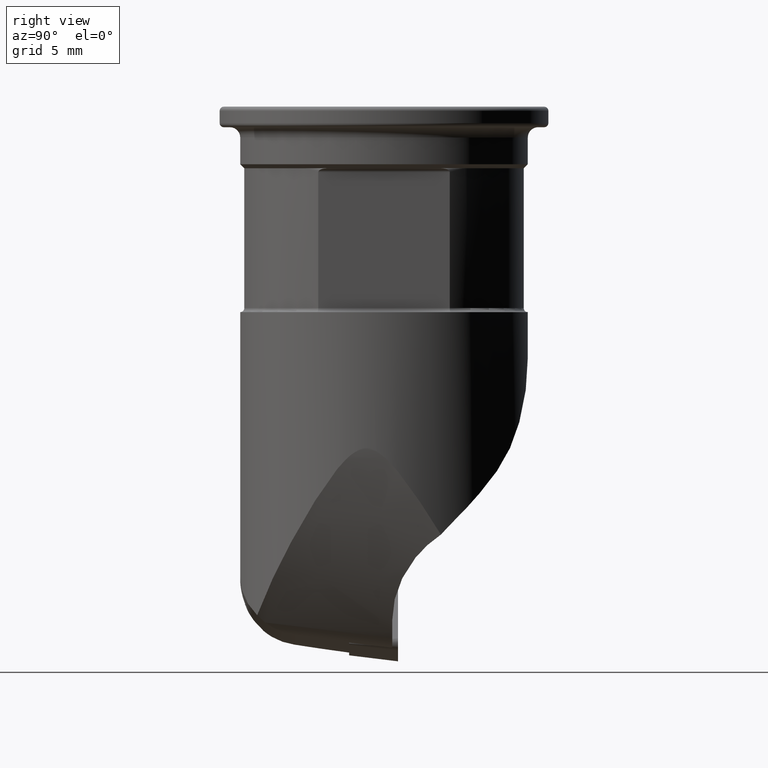
[diagram: clean part render]
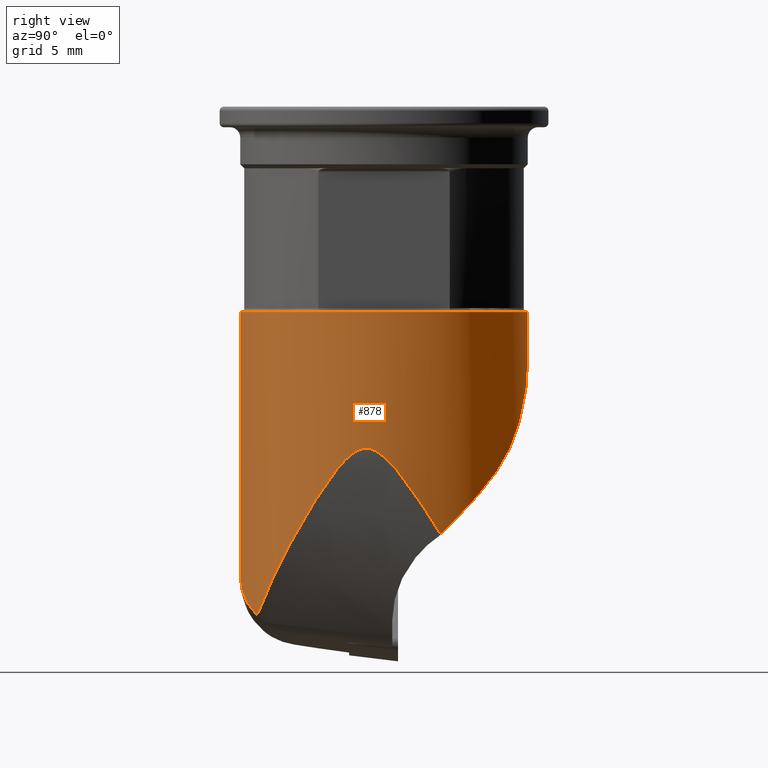
[diagram: same view with one face highlighted and labeled with its STEP entity id]
A machine part, right view. The second image highlights one B-rep face of the part: STEP entity #878.
In plain terms, the highlighted cylindrical surface (partial cylindrical patch) has radius 7 mm, axis along (0, 0, 1).
Its self-contained STEP definition (entity closure, byte-faithful):
#718=VERTEX_POINT('NONE',#2031);
#724=VERTEX_POINT('NONE',#2037);
#774=EDGE_CURVE('NONE',#1180,#1252,#2092,.T.);
#782=EDGE_CURVE('NONE',#1078,#1354,#2100,.T.);
#800=VERTEX_POINT('NONE',#2120);
#856=VERTEX_POINT('NONE',#2182);
#868=EDGE_CURVE('NONE',#1354,#1744,#2195,.T.);
#878=ADVANCED_FACE('NONE',(#2206),#2207,.T.);
#932=EDGE_CURVE('NONE',#1804,#724,#2265,.F.);
#948=VERTEX_POINT('NONE',#2282);
#958=VERTEX_POINT('NONE',#2292);
#970=EDGE_CURVE('NONE',#1300,#1518,#2306,.T.);
#1014=EDGE_CURVE('NONE',#958,#1078,#2355,.F.);
#1052=EDGE_CURVE('NONE',#948,#1300,#2400,.F.);
#1078=VERTEX_POINT('NONE',#2429);
#1104=EDGE_CURVE('NONE',#800,#1180,#2457,.F.);
#1150=EDGE_CURVE('NONE',#958,#1712,#2507,.T.);
#1180=VERTEX_POINT('NONE',#2542);
#1182=EDGE_CURVE('NONE',#1744,#1518,#2544,.F.);
#1218=EDGE_CURVE('NONE',#856,#948,#2583,.F.);
#1252=VERTEX_POINT('NONE',#2621);
#1294=EDGE_CURVE('NONE',#724,#1712,#2673,.T.);
#1300=VERTEX_POINT('NONE',#2681);
#1344=EDGE_CURVE('NONE',#856,#718,#2732,.F.);
#1354=VERTEX_POINT('NONE',#2743);
#1500=EDGE_CURVE('NONE',#1252,#1804,#2903,.F.);
#1518=VERTEX_POINT('NONE',#2922);
#1528=EDGE_CURVE('NONE',#800,#718,#2932,.T.);
#1712=VERTEX_POINT('NONE',#3140);
#1744=VERTEX_POINT('NONE',#3172);
#1804=VERTEX_POINT('NONE',#3237);
#2031=CARTESIAN_POINT('',(3.29838022265162,-6.17419532464115,-24.7547677929149));
#2037=CARTESIAN_POINT('',(6.2,3.24961536185438,-10.0));
#2092=LINE('',#3606,#3607);
#2100=ELLIPSE('',#3619,9.33333333333331,7.0);
#2120=CARTESIAN_POINT('',(-2.8421709430404E-014,-7.0,-22.8576985133863));
#2182=CARTESIAN_POINT('',(6.86464660039876,-1.36990038018603,-16.7884912981286));
#2195=B_SPLINE_CURVE_WITH_KNOTS('',3,(#3757,#3758,#3759,#3760,#3761,#3762,#3763,#3764,#3765,#3766,#3767,#3768,#3769,#3770,#3771,#3772,#3773,#3774),.UNSPECIFIED.,.F.,.F.,(4,2,2,2,2,2,2,2,4),(0.0,0.958743457869818,1.91748691573964,2.87623037360946,3.83497383147927,4.79371728934909,5.75246074721891,6.71120420508873,7.66994766295855),.UNSPECIFIED.);
#2206=FACE_OUTER_BOUND('',#3787,.T.);
#2207=CYLINDRICAL_SURFACE('',#3788,7.0);
#2265=CIRCLE('',#3873,7.0);
#2282=CARTESIAN_POINT('',(6.87349269490676,-1.32480118246602,-16.7636936487642));
#2292=CARTESIAN_POINT('',(-1.77635683940025E-015,7.0,-12.2321305522334));
#2306=B_SPLINE_CURVE_WITH_KNOTS('',3,(#3926,#3927,#3928,#3929,#3930,#3931,#3932,#3933),.UNSPECIFIED.,.F.,.F.,(4,2,2,4),(-0.0479824227621615,-0.0243252896451255,-0.0122296593758673,-0.0),.UNSPECIFIED.);
#2355=B_SPLINE_CURVE_WITH_KNOTS('',3,(#4083,#4084,#4085,#4086,#4087,#4088,#4089,#4090,#4091,#4092,#4093,#4094,#4095,#4096,#4097,#4098,#4099,#4100),.UNSPECIFIED.,.F.,.F.,(4,2,2,2,2,2,2,2,4),(16.7221896226218,17.3235818928206,17.9249741630195,19.1277587034173,20.330543243815,21.5333277842128,23.9388968650083,26.3444659458038,26.3521997246103),.UNSPECIFIED.);
#2400=B_SPLINE_CURVE_WITH_KNOTS('',3,(#4357,#4358,#4359,#4360,#4361,#4362),.UNSPECIFIED.,.F.,.F.,(4,2,4),(-0.000991462258140471,-0.000495731129070236,-0.0),.UNSPECIFIED.);
#2429=CARTESIAN_POINT('',(4.33012701892221,5.49999999999999,-17.7321305522334));
#2457=LINE('',#4491,#4492);
#2507=LINE('',#4572,#4573);
#2542=CARTESIAN_POINT('',(-2.02109816968193E-015,-7.0,-16.5035189826904));
#2544=B_SPLINE_CURVE_WITH_KNOTS('',3,(#4892,#4893,#4894,#4895,#4896,#4897,#4898,#4899,#4900,#4901,#4902,#4903,#4904,#4905,#4906,#4907,#4908,#4909,#4910,#4911,#4912,#4913,#4914,#4915,#4916,#4917,#4918,#4919,#4920,#4921,#4922,#4923,#4924,#4925,#4926,#4927,#4928,#4929,#4930,#4931,#4932,#4933),.UNSPECIFIED.,.F.,.F.,(4,2,2,2,2,2,2,2,2,2,2,2,2,2,2,2,2,2,2,2,4),(0.0,2.03990172280936,4.07980344561873,6.11970516842809,8.15960689123745,9.86495752894426,10.7176328477977,11.5703081666511,12.2614474492123,12.607017090493,12.9525867317736,13.2623377549498,13.572088778126,13.8818398013023,14.1915908244785,14.811092870831,15.4305949171834,16.6695990098883,17.9086031025932,19.9649502830436,22.021297463494),.UNSPECIFIED.);
#2583=B_SPLINE_CURVE_WITH_KNOTS('',3,(#4983,#4984,#4985,#4986,#4987,#4988,#4989),.UNSPECIFIED.,.F.,.F.,(4,3,4),(0.0,0.671083726841175,1.0),.UNSPECIFIED.);
#2621=CARTESIAN_POINT('',(-1.22464679914735E-015,-7.0,-10.0));
#2673=CIRCLE('',#5160,7.0);
#2681=CARTESIAN_POINT('',(6.98900246608667,-0.392230199034196,-16.7634895249247));
#2732=B_SPLINE_CURVE_WITH_KNOTS('',3,(#5261,#5262,#5263,#5264,#5265,#5266,#5267,#5268,#5269,#5270,#5271,#5272,#5273,#5274,#5275,#5276,#5277,#5278,#5279,#5280,#5281,#5282,#5283,#5284,#5285,#5286,#5287,#5288,#5289,#5290,#5291,#5292,#5293,#5294,#5295,#5296,#5297,#5298,#5299,#5300,#5301,#5302),.UNSPECIFIED.,.F.,.F.,(4,2,2,2,2,2,2,2,2,2,2,2,2,2,2,2,2,2,2,2,4),(0.0,2.03990172280936,4.07980344561873,6.11970516842809,8.15960689123745,9.86495752894426,10.7176328477977,11.5703081666511,12.2614474492123,12.607017090493,12.9525867317736,13.2623377549498,13.572088778126,13.8818398013023,14.1915908244785,14.811092870831,15.4305949171834,16.6695990098883,17.9086031025932,19.9649502830436,22.021297463494),.UNSPECIFIED.);
#2743=CARTESIAN_POINT('',(6.11882341631132,3.40000000000003,-20.1648348987645));
#2903=CIRCLE('',#5607,7.0);
#2922=CARTESIAN_POINT('',(6.99123751229997,-0.350140038569912,-16.7863895080608));
#2932=B_SPLINE_CURVE_WITH_KNOTS('',3,(#5648,#5649,#5650,#5651,#5652,#5653,#5654,#5655,#5656,#5657,#5658,#5659,#5660,#5661,#5662,#5663),.UNSPECIFIED.,.F.,.F.,(4,2,2,2,2,2,2,4),(0.0,0.00541909721256568,0.96786555649554,1.93031201577851,2.89275847506149,3.85520493434446,4.64707572290395,5.43894651146343),.UNSPECIFIED.);
#3140=CARTESIAN_POINT('',(-3.67394039744206E-016,7.0,-10.0));
#3172=CARTESIAN_POINT('',(6.42924304014983,2.76854364796456,-20.8289220561862));
#3237=CARTESIAN_POINT('',(6.2,-3.24961536185438,-10.0));
#3606=CARTESIAN_POINT('',(1.26060226389638E-016,-7.0,1.02935986504359));
#3607=VECTOR('',#7065,1000.0);
#3619=AXIS2_PLACEMENT_3D('',#7070,#7071,#7072);
#3757=CARTESIAN_POINT('',(3.76454034465691,5.90154522082568,-17.9013348987644));
#3758=CARTESIAN_POINT('',(4.00176154316858,5.75022404323753,-18.0528608612331));
#3759=CARTESIAN_POINT('',(4.23230607154905,5.5828692077239,-18.2087353863286));
#3760=CARTESIAN_POINT('',(4.67115215087124,5.22122407591709,-18.5325406119994));
#3761=CARTESIAN_POINT('',(4.87943251432246,5.02694522400784,-18.7005128075117));
#3762=CARTESIAN_POINT('',(5.26685804310208,4.61944207509654,-19.0523575250352));
#3763=CARTESIAN_POINT('',(5.44604612301721,4.40618074023025,-19.2363204601669));
#3764=CARTESIAN_POINT('',(5.77124693069701,3.97071227252183,-19.6234546351738));
#3765=CARTESIAN_POINT('',(5.91726110376572,3.74853561462404,-19.8266589394441));
#3766=CARTESIAN_POINT('',(6.17519670742555,3.30642463222067,-20.2539612794805));
#3767=CARTESIAN_POINT('',(6.28744837640338,3.08597194882937,-20.4786005341736));
#3768=CARTESIAN_POINT('',(6.48026761680289,2.65732225544266,-20.9497915502272));
#3769=CARTESIAN_POINT('',(6.56086700199605,2.44915395603455,-21.1963564102568));
#3770=CARTESIAN_POINT('',(6.69480729011763,2.05496627564181,-21.7091869529143));
#3771=CARTESIAN_POINT('',(6.74820917420692,1.86890689242424,-21.9755319022758));
#3772=CARTESIAN_POINT('',(6.83380547710232,1.52651326001949,-22.5238093113466));
#3773=CARTESIAN_POINT('',(6.86604215616369,1.37018628612768,-22.8057397159509));
#3774=CARTESIAN_POINT('',(6.89088133331995,1.23115979876805,-23.092422056186));
#3787=EDGE_LOOP('',(#7205,#7206,#7207,#7208,#7209,#7210,#7211,#7212,#7213,#7214,#7215,#7216,#7217,#7218,#7219));
#3788=AXIS2_PLACEMENT_3D('',#7220,#7221,#7222);
#3873=AXIS2_PLACEMENT_3D('',#7282,#7283,#7284);
#3926=CARTESIAN_POINT('',(6.98900242589995,-0.392230914958872,-16.7634891448427));
#3927=CARTESIAN_POINT('',(6.98939270468554,-0.38527669672869,-16.7671817669863));
#3928=CARTESIAN_POINT('',(6.98977156131338,-0.378340470626926,-16.7709099854738));
#3929=CARTESIAN_POINT('',(6.99032707919062,-0.36788567732762,-16.7765966266023));
#3930=CARTESIAN_POINT('',(6.99051207356688,-0.364353434667183,-16.7785295616328));
#3931=CARTESIAN_POINT('',(6.99087823081193,-0.357259451965193,-16.7824348294096));
#3932=CARTESIAN_POINT('',(6.99105933081868,-0.353697789873347,-16.784407372799));
#3933=CARTESIAN_POINT('',(6.99123751308667,-0.350140028824675,-16.7863895112359));
#4083=CARTESIAN_POINT('',(5.74456264653803,4.0,-19.0128569577265));
#4084=CARTESIAN_POINT('',(5.63577905240399,4.15622854285463,-18.9500507203698));
#4085=CARTESIAN_POINT('',(5.5269497650961,4.29913971788994,-18.8734749862925));
#4086=CARTESIAN_POINT('',(5.30840886426247,4.56624258481898,-18.70234621669));
#4087=CARTESIAN_POINT('',(5.19870317684939,4.69035102689884,-18.6076557121923));
#4088=CARTESIAN_POINT('',(4.86708408110972,5.0413412052431,-18.3029476880956));
#4089=CARTESIAN_POINT('',(4.64286542247981,5.24700246073342,-18.0728436105066));
#4090=CARTESIAN_POINT('',(4.1843929232017,5.61943716314196,-17.5742730925055));
#4091=CARTESIAN_POINT('',(3.95082594519782,5.7853048864477,-17.3061360100033));
#4092=CARTESIAN_POINT('',(3.47494777416338,6.08305155700497,-16.7414109473402));
#4093=CARTESIAN_POINT('',(3.23266328729142,6.21482173883428,-16.4447431253346));
#4094=CARTESIAN_POINT('',(2.4939689170634,6.56327689528534,-15.521632648527));
#4095=CARTESIAN_POINT('',(1.98978364175156,6.73087496240267,-14.8674045166704));
#4096=CARTESIAN_POINT('',(0.985802830915673,6.94925241798673,-13.5467480032609));
#4097=CARTESIAN_POINT('',(0.486076061475614,6.99965804226892,-12.8802055707493));
#4098=CARTESIAN_POINT('',(0.00340295103908618,6.99999934375019,-12.236667636105));
#4099=CARTESIAN_POINT('',(0.00154679594165721,7.0,-12.2341928631125));
#4100=CARTESIAN_POINT('',(-1.77635683940025E-015,7.0,-12.2321305522334));
#4357=CARTESIAN_POINT('',(6.98900242589955,-0.392230914959586,-16.7634891448454));
#4358=CARTESIAN_POINT('',(6.98078591304163,-0.538637600838101,-16.6857486196521));
#4359=CARTESIAN_POINT('',(6.96717921957207,-0.696963513157642,-16.6228160064584));
#4360=CARTESIAN_POINT('',(6.92649703102738,-1.02517476338372,-16.6233649212961));
#4361=CARTESIAN_POINT('',(6.90122762118463,-1.18090946271327,-16.6861334044064));
#4362=CARTESIAN_POINT('',(6.87348250322846,-1.32485405910901,-16.76358943765));
#4491=CARTESIAN_POINT('',(1.26060226389638E-016,-6.99999999999998,1.02935986504358));
#4492=VECTOR('',#7504,1.0);
#4572=CARTESIAN_POINT('',(9.83312985792785E-016,7.0,1.02935986504359));
#4573=VECTOR('',#7564,1000.0);
#4892=CARTESIAN_POINT('',(1.46677140068001,-6.84460237399859,-27.0172677929148));
#4893=CARTESIAN_POINT('',(1.92308112940978,-6.74681699168107,-26.5227226491531));
#4894=CARTESIAN_POINT('',(2.37092103418186,-6.60247644639963,-25.9926987320081));
#4895=CARTESIAN_POINT('',(3.21909521677221,-6.23308814243204,-24.8850475835409));
#4896=CARTESIAN_POINT('',(3.61947216154266,-6.00822108577146,-24.3073927700698));
#4897=CARTESIAN_POINT('',(4.35341164227245,-5.4997380665307,-23.1332686502513));
#4898=CARTESIAN_POINT('',(4.68720708255528,-5.21613633924565,-22.5364874944564));
#4899=CARTESIAN_POINT('',(5.27975141726129,-4.61543211461429,-21.3568480840427));
#4900=CARTESIAN_POINT('',(5.5385445172463,-4.29848338654649,-20.7739337369324));
#4901=CARTESIAN_POINT('',(5.94582421534624,-3.70859940786793,-19.7518249964205));
#4902=CARTESIAN_POINT('',(6.12968793500314,-3.40035122728336,-19.2405571082338));
#4903=CARTESIAN_POINT('',(6.37178529680634,-2.90417321416686,-18.4878498800254));
#4904=CARTESIAN_POINT('',(6.44712247417316,-2.73319189251614,-18.2394370075213));
#4905=CARTESIAN_POINT('',(6.58522359078242,-2.38129303201311,-17.7642158112624));
#4906=CARTESIAN_POINT('',(6.64798021093614,-2.20073395391638,-17.5371400274572));
#4907=CARTESIAN_POINT('',(6.75057628934227,-1.85883237466967,-17.1664710051655));
#4908=CARTESIAN_POINT('',(6.79815802782906,-1.68080766723644,-16.9933437315786));
#4909=CARTESIAN_POINT('',(6.86186264143794,-1.38739246439748,-16.794003850179));
#4910=CARTESIAN_POINT('',(6.8818958457431,-1.28499254332154,-16.7378132377906));
#4911=CARTESIAN_POINT('',(6.91830775228507,-1.07178081297949,-16.6599352016));
#4912=CARTESIAN_POINT('',(6.93469256459518,-0.960887450978874,-16.638474092643));
#4913=CARTESIAN_POINT('',(6.96110694557599,-0.744075449779645,-16.6417857351468));
#4914=CARTESIAN_POINT('',(6.96982882456945,-0.654466664569771,-16.6607356341665));
#4915=CARTESIAN_POINT('',(6.9833463939761,-0.489605588640772,-16.7147340671218));
#4916=CARTESIAN_POINT('',(6.98808865668942,-0.414445916488616,-16.7500782891418));
#4917=CARTESIAN_POINT('',(6.99511600384845,-0.271110369686944,-16.830956314571));
#4918=CARTESIAN_POINT('',(6.99735718320699,-0.203324039045344,-16.876468708386));
#4919=CARTESIAN_POINT('',(6.99994575794848,-0.0714674701400596,-16.9752035357403));
#4920=CARTESIAN_POINT('',(7.00028367067188,-0.00743338595778522,-17.028474490779));
#4921=CARTESIAN_POINT('',(6.99876014243293,0.18292994188568,-17.1991987173824));
#4922=CARTESIAN_POINT('',(6.99439516684304,0.305568646699284,-17.3256333374743));
#4923=CARTESIAN_POINT('',(6.9794659034579,0.549537655422091,-17.5981041152548));
#4924=CARTESIAN_POINT('',(6.96887514783573,0.670741751906357,-17.7442518015579));
#4925=CARTESIAN_POINT('',(6.92709786770169,1.03719493587251,-18.2089739165202));
#4926=CARTESIAN_POINT('',(6.88630434468257,1.27980793185213,-18.5465483231511));
#4927=CARTESIAN_POINT('',(6.78093068939019,1.75444428630871,-19.2364319304646));
#4928=CARTESIAN_POINT('',(6.71627982173302,1.98620669752045,-19.5889098205074));
#4929=CARTESIAN_POINT('',(6.52256881030182,2.56968388496237,-20.4991975500836));
#4930=CARTESIAN_POINT('',(6.36736713824219,2.93652820496125,-21.0965882087444));
#4931=CARTESIAN_POINT('',(5.9829693653849,3.65658852744809,-22.311838921464));
#4932=CARTESIAN_POINT('',(5.75370929962254,4.00961262901621,-22.9297924375828));
#4933=CARTESIAN_POINT('',(5.48883119399024,4.34427578819297,-23.5413163992755));
#4983=CARTESIAN_POINT('',(6.87349269490676,-1.32480118246602,-16.7636936487642));
#4984=CARTESIAN_POINT('',(6.87153280428029,-1.33496972253236,-16.769101703611));
#4985=CARTESIAN_POINT('',(6.86951435626306,-1.34531553878164,-16.7741528183392));
#4986=CARTESIAN_POINT('',(6.86756495772077,-1.3551942855125,-16.7801043790908));
#4987=CARTESIAN_POINT('',(6.86660950480515,-1.36003612629665,-16.7830213998791));
#4988=CARTESIAN_POINT('',(6.86562289830161,-1.36500809737719,-16.7856805989109));
#4989=CARTESIAN_POINT('',(6.86464660039875,-1.36990038018603,-16.7884912981286));
#5160=AXIS2_PLACEMENT_3D('',#7779,#7780,#7781);
#5261=CARTESIAN_POINT('',(1.46677140068001,-6.84460237399859,-27.0172677929148));
#5262=CARTESIAN_POINT('',(1.92308112940978,-6.74681699168107,-26.5227226491531));
#5263=CARTESIAN_POINT('',(2.37092103418186,-6.60247644639963,-25.9926987320081));
#5264=CARTESIAN_POINT('',(3.21909521677221,-6.23308814243204,-24.8850475835409));
#5265=CARTESIAN_POINT('',(3.61947216154266,-6.00822108577146,-24.3073927700698));
#5266=CARTESIAN_POINT('',(4.35341164227245,-5.4997380665307,-23.1332686502513));
#5267=CARTESIAN_POINT('',(4.68720708255528,-5.21613633924565,-22.5364874944564));
#5268=CARTESIAN_POINT('',(5.27975141726129,-4.61543211461429,-21.3568480840427));
#5269=CARTESIAN_POINT('',(5.5385445172463,-4.29848338654649,-20.7739337369324));
#5270=CARTESIAN_POINT('',(5.94582421534624,-3.70859940786793,-19.7518249964205));
#5271=CARTESIAN_POINT('',(6.12968793500314,-3.40035122728336,-19.2405571082338));
#5272=CARTESIAN_POINT('',(6.37178529680634,-2.90417321416686,-18.4878498800254));
#5273=CARTESIAN_POINT('',(6.44712247417316,-2.73319189251614,-18.2394370075213));
#5274=CARTESIAN_POINT('',(6.58522359078242,-2.38129303201311,-17.7642158112624));
#5275=CARTESIAN_POINT('',(6.64798021093614,-2.20073395391638,-17.5371400274572));
#5276=CARTESIAN_POINT('',(6.75057628934227,-1.85883237466967,-17.1664710051655));
#5277=CARTESIAN_POINT('',(6.79815802782906,-1.68080766723644,-16.9933437315786));
#5278=CARTESIAN_POINT('',(6.86186264143794,-1.38739246439748,-16.794003850179));
#5279=CARTESIAN_POINT('',(6.8818958457431,-1.28499254332154,-16.7378132377906));
#5280=CARTESIAN_POINT('',(6.91830775228507,-1.07178081297949,-16.6599352016));
#5281=CARTESIAN_POINT('',(6.93469256459518,-0.960887450978874,-16.638474092643));
#5282=CARTESIAN_POINT('',(6.96110694557599,-0.744075449779645,-16.6417857351468));
#5283=CARTESIAN_POINT('',(6.96982882456945,-0.654466664569771,-16.6607356341665));
#5284=CARTESIAN_POINT('',(6.9833463939761,-0.489605588640772,-16.7147340671218));
#5285=CARTESIAN_POINT('',(6.98808865668942,-0.414445916488616,-16.7500782891418));
#5286=CARTESIAN_POINT('',(6.99511600384845,-0.271110369686944,-16.830956314571));
#5287=CARTESIAN_POINT('',(6.99735718320699,-0.203324039045344,-16.876468708386));
#5288=CARTESIAN_POINT('',(6.99994575794848,-0.0714674701400596,-16.9752035357403));
#5289=CARTESIAN_POINT('',(7.00028367067188,-0.00743338595778522,-17.028474490779));
#5290=CARTESIAN_POINT('',(6.99876014243293,0.18292994188568,-17.1991987173824));
#5291=CARTESIAN_POINT('',(6.99439516684304,0.305568646699284,-17.3256333374743));
#5292=CARTESIAN_POINT('',(6.9794659034579,0.549537655422091,-17.5981041152548));
#5293=CARTESIAN_POINT('',(6.96887514783573,0.670741751906357,-17.7442518015579));
#5294=CARTESIAN_POINT('',(6.92709786770169,1.03719493587251,-18.2089739165202));
#5295=CARTESIAN_POINT('',(6.88630434468257,1.27980793185213,-18.5465483231511));
#5296=CARTESIAN_POINT('',(6.78093068939019,1.75444428630871,-19.2364319304646));
#5297=CARTESIAN_POINT('',(6.71627982173302,1.98620669752045,-19.5889098205074));
#5298=CARTESIAN_POINT('',(6.52256881030182,2.56968388496237,-20.4991975500836));
#5299=CARTESIAN_POINT('',(6.36736713824219,2.93652820496125,-21.0965882087444));
#5300=CARTESIAN_POINT('',(5.9829693653849,3.65658852744809,-22.311838921464));
#5301=CARTESIAN_POINT('',(5.75370929962254,4.00961262901621,-22.9297924375828));
#5302=CARTESIAN_POINT('',(5.48883119399024,4.34427578819297,-23.5413163992755));
#5607=AXIS2_PLACEMENT_3D('',#8068,#8069,#8070);
#5648=CARTESIAN_POINT('',(-2.8421709430404E-014,-7.0,-22.8576985133863));
#5649=CARTESIAN_POINT('',(0.00154679600917928,-7.0,-22.8586314545868));
#5650=CARTESIAN_POINT('',(0.00340295114170208,-6.99999934375012,-22.8597509839653));
#5651=CARTESIAN_POINT('',(0.279664910616259,-6.99980399701564,-23.0263767655281));
#5652=CARTESIAN_POINT('',(0.56690873232125,-6.9832059147254,-23.199663175211));
#5653=CARTESIAN_POINT('',(1.15085181746365,-6.9110122602423,-23.5489408117327));
#5654=CARTESIAN_POINT('',(1.44756254938969,-6.85541505885934,-23.7249125277588));
#5655=CARTESIAN_POINT('',(2.0356076715114,-6.70436094269144,-24.0668921010043));
#5656=CARTESIAN_POINT('',(2.32709630259825,-6.60885331865822,-24.2329596275814));
#5657=CARTESIAN_POINT('',(2.89099106837584,-6.38235771761091,-24.5433754074356));
#5658=CARTESIAN_POINT('',(3.16340780600315,-6.25134000328164,-24.6876826995858));
#5659=CARTESIAN_POINT('',(3.63089798356846,-5.98958000986077,-24.9219761441746));
#5660=CARTESIAN_POINT('',(3.847877155076,-5.85350061035221,-25.0255269345696));
#5661=CARTESIAN_POINT('',(4.27763671280277,-5.54720219179599,-25.2140131492822));
#5662=CARTESIAN_POINT('',(4.49041324046641,-5.37695947077022,-25.2989188526345));
#5663=CARTESIAN_POINT('',(4.69424987666123,-5.19268890801924,-25.3681856735231));
#7065=DIRECTION('',(1.22464679914735E-016,-0.0,1.0));
#7070=CARTESIAN_POINT('',(-2.31443515218608E-015,0.0,-18.8987972189));
#7071=DIRECTION('',(-0.433012701892222,0.499999999999995,-0.750000000000002));
#7072=DIRECTION('',(0.490990253030988,-0.566946709513839,-0.661437827766145));
#7205=ORIENTED_EDGE('',*,*,#1014,.F.);
#7206=ORIENTED_EDGE('',*,*,#1150,.T.);
#7207=ORIENTED_EDGE('',*,*,#1294,.F.);
#7208=ORIENTED_EDGE('',*,*,#932,.F.);
#7209=ORIENTED_EDGE('',*,*,#1500,.F.);
#7210=ORIENTED_EDGE('',*,*,#774,.F.);
#7211=ORIENTED_EDGE('',*,*,#1104,.F.);
#7212=ORIENTED_EDGE('',*,*,#1528,.T.);
#7213=ORIENTED_EDGE('',*,*,#1344,.F.);
#7214=ORIENTED_EDGE('',*,*,#1218,.T.);
#7215=ORIENTED_EDGE('',*,*,#1052,.T.);
#7216=ORIENTED_EDGE('',*,*,#970,.T.);
#7217=ORIENTED_EDGE('',*,*,#1182,.F.);
#7218=ORIENTED_EDGE('',*,*,#868,.F.);
#7219=ORIENTED_EDGE('',*,*,#782,.F.);
#7220=CARTESIAN_POINT('',(1.26060226389638E-016,0.0,1.02935986504359));
#7221=DIRECTION('',(1.22464679914735E-016,0.0,1.0));
#7222=DIRECTION('',(0.0,-1.0,0.0));
#7282=CARTESIAN_POINT('',(-1.22464679914735E-015,0.0,-10.0));
#7283=DIRECTION('',(-1.22464679914735E-016,-0.0,-1.0));
#7284=DIRECTION('',(0.0,-1.0,0.0));
#7504=DIRECTION('',(-1.22464679914735E-016,0.0,-1.0));
#7564=DIRECTION('',(1.22464679914735E-016,-0.0,1.0));
#7779=CARTESIAN_POINT('',(-1.22464679914735E-015,0.0,-10.0));
#7780=DIRECTION('',(1.22464679914735E-016,0.0,1.0));
#7781=DIRECTION('',(0.0,-1.0,0.0));
#8068=CARTESIAN_POINT('',(-1.22464679914735E-015,0.0,-10.0));
#8069=DIRECTION('',(-1.22464679914735E-016,-0.0,-1.0));
#8070=DIRECTION('',(0.0,-1.0,0.0));